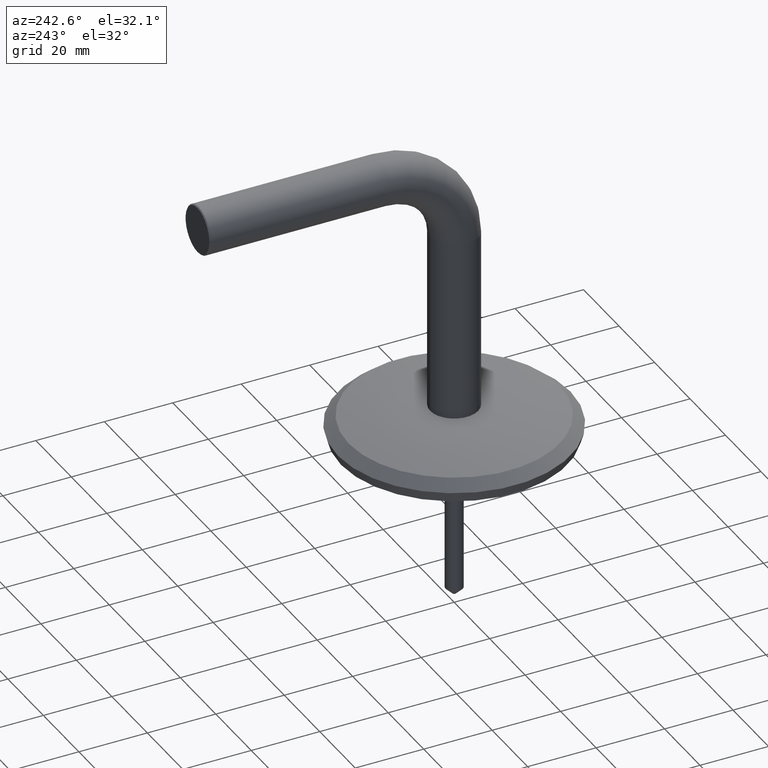
[diagram: clean part render]
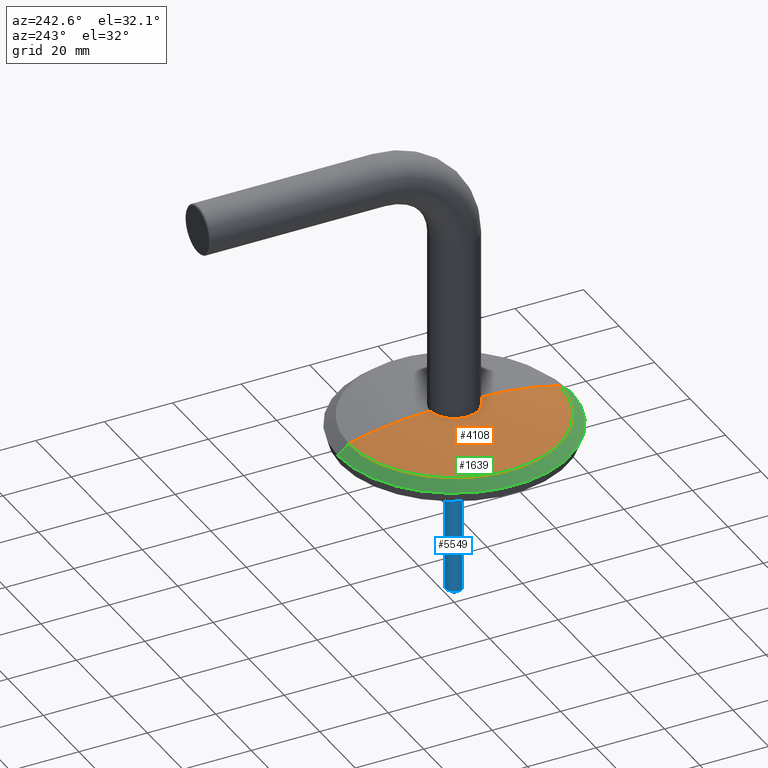
[diagram: same view with three faces highlighted in distinct colors, each labeled with its STEP entity id]
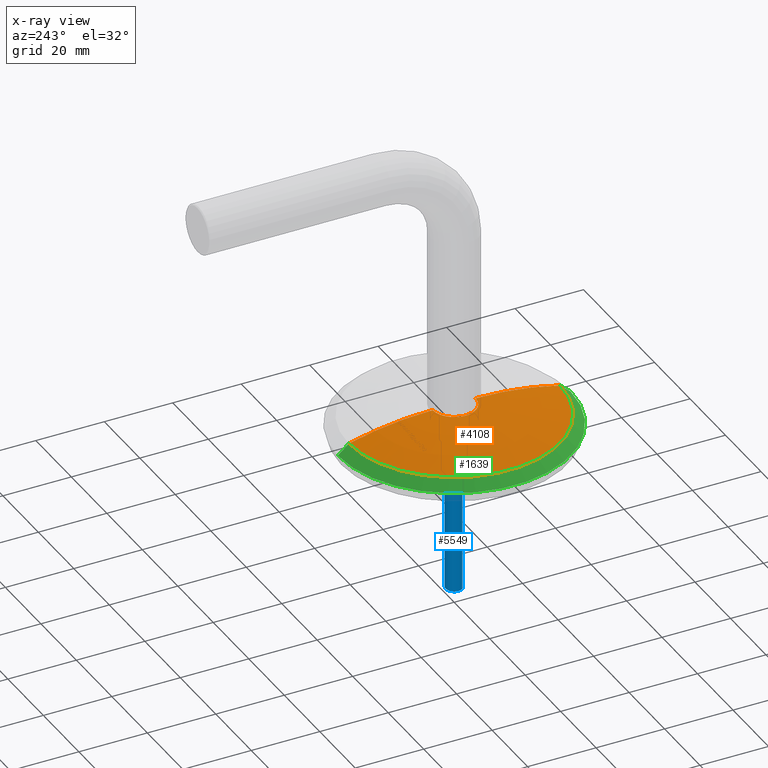
[diagram: x-ray of the same camera — body ghosted, the three highlighted faces saturated]
A machine part, auxiliary view with three faces highlighted in distinct colors.
The next image is the same camera in x-ray (body ghosted, the three faces saturated) — at least one of them is partly hidden behind the body in this view.
Their STEP definitions:

[orange] entity #4108 — the highlighted toroidal blend (fillet) surface has major radius 6.25 mm and minor (blend) radius 96.8679 mm.
#135 = DIRECTION ( 'NONE',  ( -1.000000000000000000, 0.000000000000000000, 0.000000000000000000 ) ) ;
#622 = CIRCLE ( 'NONE', #10187, 30.81906958466698043 ) ;
#846 = CARTESIAN_POINT ( 'NONE',  ( 0.000000000000000000, -87.86785809411674109, 0.000000000000000000 ) ) ;
#923 = CARTESIAN_POINT ( 'NONE',  ( 0.000000000000000000, 5.832423396846378338, 0.000000000000000000 ) ) ;
#1063 = CIRCLE ( 'NONE', #3307, 96.86785809411671266 ) ;
#1268 = DIRECTION ( 'NONE',  ( -1.224646799147353207E-16, 0.000000000000000000, -1.000000000000000000 ) ) ;
#1702 = VERTEX_POINT ( 'NONE', #8713 ) ;
#1986 = AXIS2_PLACEMENT_3D ( 'NONE', #846, #11333, #12539 ) ;
#2045 = EDGE_CURVE ( 'NONE', #1702, #7312, #1063, .T. ) ;
#2735 = CARTESIAN_POINT ( 'NONE',  ( 0.000000000000000000, 5.832423396846378338, -30.81906958466698754 ) ) ;
#3307 = AXIS2_PLACEMENT_3D ( 'NONE', #11741, #135, #11829 ) ;
#3367 = EDGE_CURVE ( 'NONE', #5376, #1702, #6883, .T. ) ;
#4108 = ADVANCED_FACE ( 'NONE', ( #5332 ), #8679, .T. ) ;
#4975 = EDGE_CURVE ( 'NONE', #5376, #6936, #11663, .T. ) ;
#5056 = DIRECTION ( 'NONE',  ( -0.000000000000000000, -1.000000000000000000, -0.000000000000000000 ) ) ;
#5332 = FACE_OUTER_BOUND ( 'NONE', #11266, .T. ) ;
#5376 = VERTEX_POINT ( 'NONE', #6226 ) ;
#5470 = DIRECTION ( 'NONE',  ( 1.000000000000000000, 0.000000000000000000, -1.224646799147353207E-16 ) ) ;
#6226 = CARTESIAN_POINT ( 'NONE',  ( 2.269825870711645228E-15, 9.000000000000000000, 6.250000000000000000 ) ) ;
#6387 = ORIENTED_EDGE ( 'NONE', *, *, #11352, .F. ) ;
#6883 = CIRCLE ( 'NONE', #8755, 6.250000000000000000 ) ;
#6936 = VERTEX_POINT ( 'NONE', #13520 ) ;
#7312 = VERTEX_POINT ( 'NONE', #2735 ) ;
#8165 = CARTESIAN_POINT ( 'NONE',  ( 0.000000000000000000, 9.000000000000000000, 0.000000000000000000 ) ) ;
#8679 = TOROIDAL_SURFACE ( 'NONE', #1986, 6.250000000000000000, 96.86785809411671266 ) ;
#8713 = CARTESIAN_POINT ( 'NONE',  ( 0.000000000000000000, 9.000000000000000000, -6.250000000000000000 ) ) ;
#8755 = AXIS2_PLACEMENT_3D ( 'NONE', #8165, #13377, #13328 ) ;
#9360 = ORIENTED_EDGE ( 'NONE', *, *, #4975, .F. ) ;
#10187 = AXIS2_PLACEMENT_3D ( 'NONE', #923, #5056, #11542 ) ;
#10683 = CARTESIAN_POINT ( 'NONE',  ( 7.654042494670957606E-16, -87.86785809411674109, 6.250000000000000000 ) ) ;
#11266 = EDGE_LOOP ( 'NONE', ( #9360, #13203, #11276, #6387 ) ) ;
#11276 = ORIENTED_EDGE ( 'NONE', *, *, #2045, .T. ) ;
#11333 = DIRECTION ( 'NONE',  ( -0.000000000000000000, -1.000000000000000000, -0.000000000000000000 ) ) ;
#11352 = EDGE_CURVE ( 'NONE', #6936, #7312, #622, .T. ) ;
#11542 = DIRECTION ( 'NONE',  ( 0.000000000000000000, 0.000000000000000000, -1.000000000000000000 ) ) ;
#11663 = CIRCLE ( 'NONE', #13555, 96.86785809411671266 ) ;
#11741 = CARTESIAN_POINT ( 'NONE',  ( 0.000000000000000000, -87.86785809411674109, -6.250000000000000000 ) ) ;
#11829 = DIRECTION ( 'NONE',  ( 0.000000000000000000, 0.000000000000000000, 1.000000000000000000 ) ) ;
#12539 = DIRECTION ( 'NONE',  ( 0.000000000000000000, 0.000000000000000000, -1.000000000000000000 ) ) ;
#13203 = ORIENTED_EDGE ( 'NONE', *, *, #3367, .T. ) ;
#13328 = DIRECTION ( 'NONE',  ( 0.000000000000000000, 0.000000000000000000, -1.000000000000000000 ) ) ;
#13377 = DIRECTION ( 'NONE',  ( -0.000000000000000000, -1.000000000000000000, -0.000000000000000000 ) ) ;
#13520 = CARTESIAN_POINT ( 'NONE',  ( 3.774247491956197357E-15, 5.832423396846378338, 30.81906958466698754 ) ) ;
#13555 = AXIS2_PLACEMENT_3D ( 'NONE', #10683, #5470, #1268 ) ;

[blue] entity #5549 — the highlighted cylindrical surface (edge-blend (fillet) strip) has radius 2.5 mm, axis along (0, 0, -1).
#1321 = CARTESIAN_POINT ( 'NONE',  ( 0.000000000000000000, 0.000000000000000000, -37.50000000000000000 ) ) ;
#1557 = VERTEX_POINT ( 'NONE', #10210 ) ;
#1861 = DIRECTION ( 'NONE',  ( 0.000000000000000000, 0.000000000000000000, 1.000000000000000000 ) ) ;
#2407 = EDGE_CURVE ( 'NONE', #13730, #9747, #6891, .T. ) ;
#2490 = ORIENTED_EDGE ( 'NONE', *, *, #12263, .T. ) ;
#2877 = ORIENTED_EDGE ( 'NONE', *, *, #7536, .F. ) ;
#2931 = EDGE_CURVE ( 'NONE', #9747, #5647, #8541, .T. ) ;
#3023 = ORIENTED_EDGE ( 'NONE', *, *, #2407, .T. ) ;
#3176 = CYLINDRICAL_SURFACE ( 'NONE', #6270, 2.500000000000000000 ) ;
#3373 = DIRECTION ( 'NONE',  ( 1.000000000000000000, 0.000000000000000000, 0.000000000000000000 ) ) ;
#3791 = AXIS2_PLACEMENT_3D ( 'NONE', #1321, #7745, #7897 ) ;
#4872 = EDGE_LOOP ( 'NONE', ( #2490, #3023, #6875, #2877 ) ) ;
#5052 = CARTESIAN_POINT ( 'NONE',  ( 2.500000000000000000, 0.000000000000000000, -37.50000000000000000 ) ) ;
#5549 = ADVANCED_FACE ( 'NONE', ( #12638 ), #3176, .T. ) ;
#5647 = VERTEX_POINT ( 'NONE', #5881 ) ;
#5838 = DIRECTION ( 'NONE',  ( 0.000000000000000000, 0.000000000000000000, 1.000000000000000000 ) ) ;
#5881 = CARTESIAN_POINT ( 'NONE',  ( 2.500000000000000000, 0.000000000000000000, -2.000000000000015543 ) ) ;
#6270 = AXIS2_PLACEMENT_3D ( 'NONE', #7966, #5838, #8100 ) ;
#6527 = VECTOR ( 'NONE', #1861, 1000.000000000000000 ) ;
#6875 = ORIENTED_EDGE ( 'NONE', *, *, #2931, .T. ) ;
#6891 = LINE ( 'NONE', #11135, #6527 ) ;
#7536 = EDGE_CURVE ( 'NONE', #1557, #5647, #8656, .T. ) ;
#7594 = AXIS2_PLACEMENT_3D ( 'NONE', #9721, #7617, #3373 ) ;
#7617 = DIRECTION ( 'NONE',  ( 0.000000000000000000, 0.000000000000000000, -1.000000000000000000 ) ) ;
#7745 = DIRECTION ( 'NONE',  ( 0.000000000000000000, -0.000000000000000000, 1.000000000000000000 ) ) ;
#7897 = DIRECTION ( 'NONE',  ( -1.000000000000000000, 0.000000000000000000, 0.000000000000000000 ) ) ;
#7966 = CARTESIAN_POINT ( 'NONE',  ( 0.000000000000000000, 0.000000000000000000, -37.50000000000000000 ) ) ;
#8100 = DIRECTION ( 'NONE',  ( 1.000000000000000000, 0.000000000000000000, 0.000000000000000000 ) ) ;
#8541 = CIRCLE ( 'NONE', #7594, 2.500000000000000000 ) ;
#8656 = LINE ( 'NONE', #5052, #12944 ) ;
#9007 = CARTESIAN_POINT ( 'NONE',  ( -2.500000000000000000, 3.061616997868383141E-16, -37.50000000000000000 ) ) ;
#9721 = CARTESIAN_POINT ( 'NONE',  ( 0.000000000000000000, 0.000000000000000000, -2.000000000000015543 ) ) ;
#9747 = VERTEX_POINT ( 'NONE', #11591 ) ;
#10210 = CARTESIAN_POINT ( 'NONE',  ( 2.500000000000000000, 0.000000000000000000, -37.50000000000000000 ) ) ;
#10338 = DIRECTION ( 'NONE',  ( 0.000000000000000000, 0.000000000000000000, 1.000000000000000000 ) ) ;
#11135 = CARTESIAN_POINT ( 'NONE',  ( -2.500000000000000000, 3.061616997868383141E-16, -37.50000000000000000 ) ) ;
#11591 = CARTESIAN_POINT ( 'NONE',  ( -2.500000000000000000, 3.061616997868383141E-16, -2.000000000000015543 ) ) ;
#12252 = CIRCLE ( 'NONE', #3791, 2.500000000000000000 ) ;
#12263 = EDGE_CURVE ( 'NONE', #1557, #13730, #12252, .T. ) ;
#12638 = FACE_OUTER_BOUND ( 'NONE', #4872, .T. ) ;
#12944 = VECTOR ( 'NONE', #10338, 1000.000000000000000 ) ;
#13730 = VERTEX_POINT ( 'NONE', #9007 ) ;

[green] entity #1639 — the highlighted conical surface has half-angle 49.03 deg.
#622 = CIRCLE ( 'NONE', #10187, 30.81906958466698043 ) ;
#825 = CARTESIAN_POINT ( 'NONE',  ( 4.163799117101000559E-15, 3.070234033247562611, 34.00000000000000000 ) ) ;
#888 = DIRECTION ( 'NONE',  ( -0.000000000000000000, -1.000000000000000000, -0.000000000000000000 ) ) ;
#923 = CARTESIAN_POINT ( 'NONE',  ( 0.000000000000000000, 5.832423396846378338, 0.000000000000000000 ) ) ;
#1327 = LINE ( 'NONE', #12561, #11121 ) ;
#1363 = CARTESIAN_POINT ( 'NONE',  ( 0.000000000000000000, 3.070234033247562611, 0.000000000000000000 ) ) ;
#1639 = ADVANCED_FACE ( 'NONE', ( #5205 ), #5698, .T. ) ;
#2204 = AXIS2_PLACEMENT_3D ( 'NONE', #1363, #11996, #6663 ) ;
#2735 = CARTESIAN_POINT ( 'NONE',  ( 0.000000000000000000, 5.832423396846378338, -30.81906958466698754 ) ) ;
#3078 = ORIENTED_EDGE ( 'NONE', *, *, #13519, .F. ) ;
#3289 = EDGE_CURVE ( 'NONE', #4853, #3954, #13504, .T. ) ;
#3502 = ORIENTED_EDGE ( 'NONE', *, *, #7561, .T. ) ;
#3599 = ORIENTED_EDGE ( 'NONE', *, *, #11352, .T. ) ;
#3954 = VERTEX_POINT ( 'NONE', #10322 ) ;
#4156 = DIRECTION ( 'NONE',  ( 9.246773247622443815E-17, -0.6556599193418465310, 0.7550563357582289470 ) ) ;
#4853 = VERTEX_POINT ( 'NONE', #12684 ) ;
#5056 = DIRECTION ( 'NONE',  ( -0.000000000000000000, -1.000000000000000000, -0.000000000000000000 ) ) ;
#5205 = FACE_OUTER_BOUND ( 'NONE', #8190, .T. ) ;
#5698 = CONICAL_SURFACE ( 'NONE', #2204, 34.00000000000000000, 0.8557400374771453322 ) ;
#6663 = DIRECTION ( 'NONE',  ( 0.000000000000000000, 0.000000000000000000, -1.000000000000000000 ) ) ;
#6769 = ORIENTED_EDGE ( 'NONE', *, *, #3289, .F. ) ;
#6936 = VERTEX_POINT ( 'NONE', #13520 ) ;
#7312 = VERTEX_POINT ( 'NONE', #2735 ) ;
#7561 = EDGE_CURVE ( 'NONE', #7312, #3954, #1327, .T. ) ;
#8190 = EDGE_LOOP ( 'NONE', ( #3078, #3599, #3502, #6769 ) ) ;
#8273 = DIRECTION ( 'NONE',  ( 0.000000000000000000, -0.6556599193418465310, -0.7550563357582289470 ) ) ;
#9563 = LINE ( 'NONE', #825, #13719 ) ;
#9622 = AXIS2_PLACEMENT_3D ( 'NONE', #13675, #888, #10392 ) ;
#10187 = AXIS2_PLACEMENT_3D ( 'NONE', #923, #5056, #11542 ) ;
#10322 = CARTESIAN_POINT ( 'NONE',  ( 0.000000000000000000, 3.070234033247562611, -34.00000000000000000 ) ) ;
#10392 = DIRECTION ( 'NONE',  ( 0.000000000000000000, 0.000000000000000000, -1.000000000000000000 ) ) ;
#11121 = VECTOR ( 'NONE', #8273, 999.9999999999998863 ) ;
#11352 = EDGE_CURVE ( 'NONE', #6936, #7312, #622, .T. ) ;
#11542 = DIRECTION ( 'NONE',  ( 0.000000000000000000, 0.000000000000000000, -1.000000000000000000 ) ) ;
#11996 = DIRECTION ( 'NONE',  ( -0.000000000000000000, -1.000000000000000000, -0.000000000000000000 ) ) ;
#12561 = CARTESIAN_POINT ( 'NONE',  ( 0.000000000000000000, 3.070234033247562611, -34.00000000000000000 ) ) ;
#12684 = CARTESIAN_POINT ( 'NONE',  ( 4.163799117101000559E-15, 3.070234033247562611, 34.00000000000000000 ) ) ;
#13504 = CIRCLE ( 'NONE', #9622, 34.00000000000000000 ) ;
#13519 = EDGE_CURVE ( 'NONE', #6936, #4853, #9563, .T. ) ;
#13520 = CARTESIAN_POINT ( 'NONE',  ( 3.774247491956197357E-15, 5.832423396846378338, 30.81906958466698754 ) ) ;
#13675 = CARTESIAN_POINT ( 'NONE',  ( 0.000000000000000000, 3.070234033247562611, 0.000000000000000000 ) ) ;
#13719 = VECTOR ( 'NONE', #4156, 999.9999999999998863 ) ;